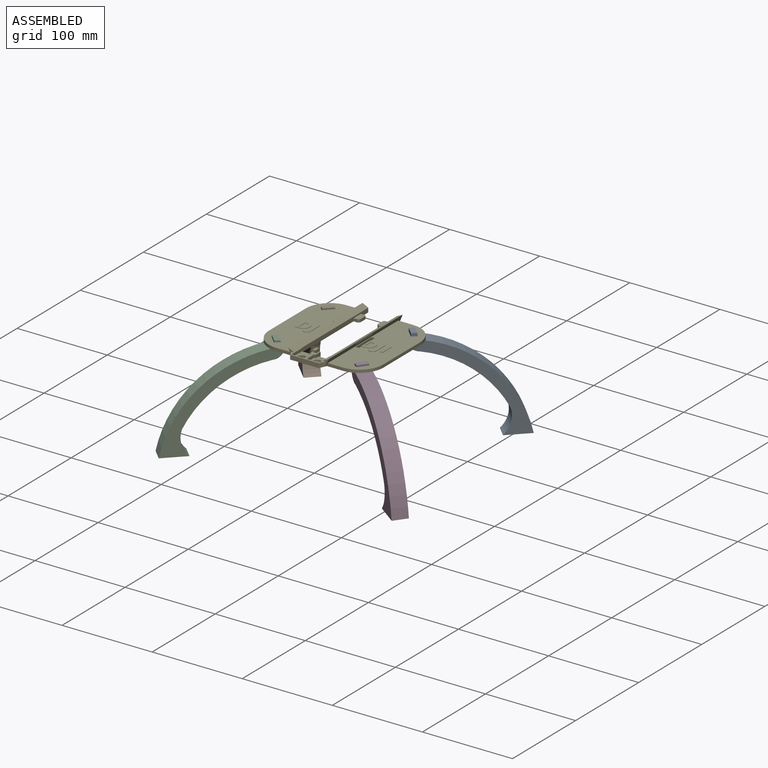
[diagram: assembled view]
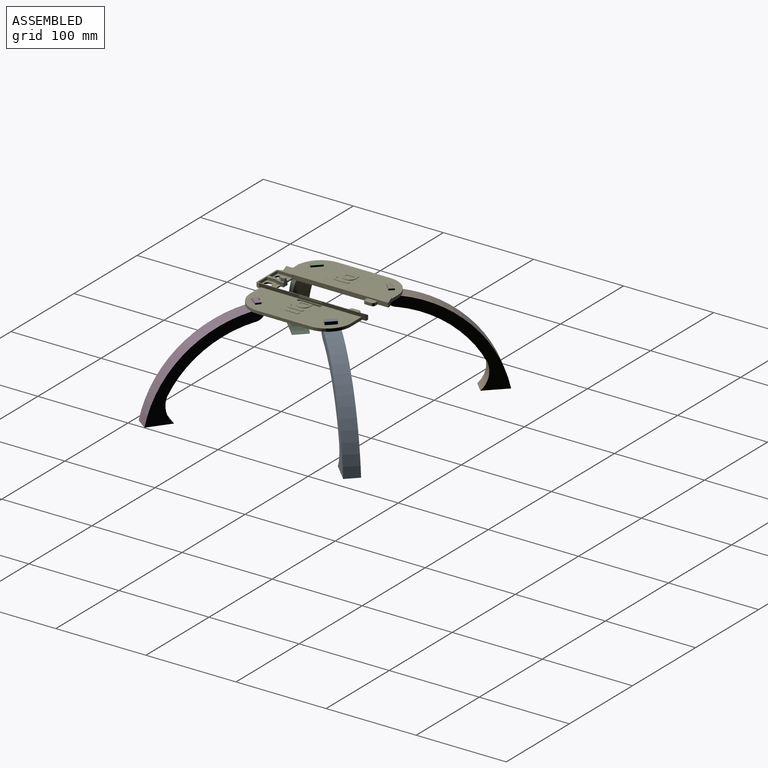
[diagram: assembled view, second angle]
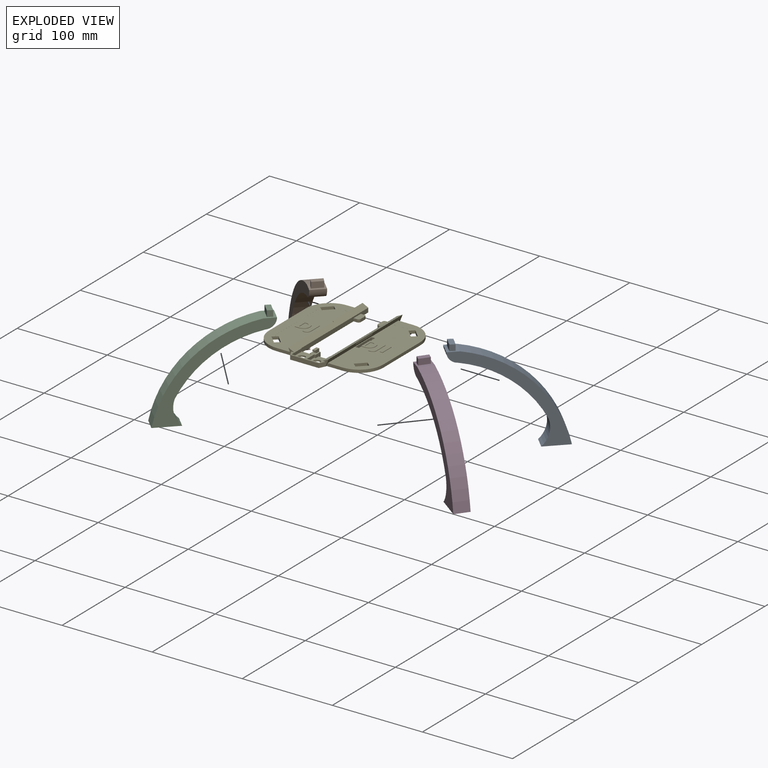
[diagram: exploded view]
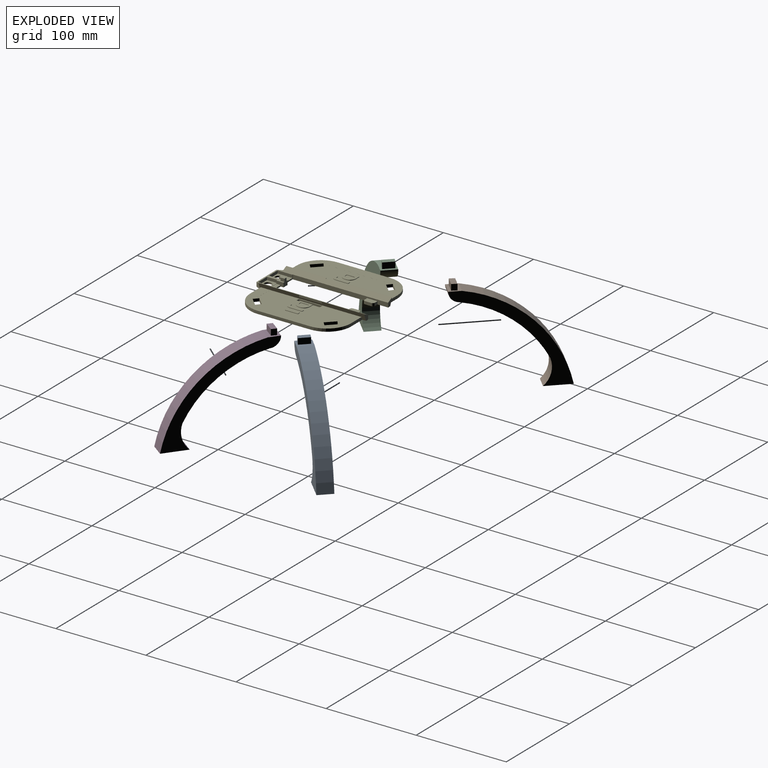
[diagram: exploded view, second angle]
ASSEMBLY  parts=5 mates=3
PART A: 13 faces, bbox 93.8x93.8x108.2 mm
  f0: plane 101.6x82.05mm, normal (0.71,-0.71,0), area 1936.1mm2, adj f1,f8,f9,f10,f11,f12
  f1: plane 31.82x31.82mm, normal (0,0,-1), area 471mm2, adj f0,f7,f9,f12
  f2: plane 6.61x4.43mm, normal (-0.65,0.76,0), area 38.7mm2, adj f3,f5,f6,f8
  f3: plane 8.64x8.64mm, normal (0.71,0.71,0), area 80.8mm2, adj f2,f4,f6,f8
  f4: plane 6.61x4.43mm, normal (0.65,-0.76,0), area 38.7mm2, adj f3,f5,f6,f8
  f5: plane 8.64x8.64mm, normal (-0.71,-0.71,0), area 80.8mm2, adj f2,f4,f6,f8
  f6: plane 13.08x12.47mm, normal (0,0,1), area 71.4mm2, adj f2,f3,f4,f5
  f7: plane 101.6x82.05mm, normal (-0.71,0.71,0), area 1936.1mm2, adj f1,f8,f9,f10,f11,f12
  f8: plane 20.72x20.72mm, normal (0,0,1), area 139.5mm2, adj f0,f2,f3,f4,f5,f7,f9,f10
  f9: cylinder r=129.8mm len=101.6mm, axis (-0.71,0.71,0), area 2545.9mm2, adj f0,f1,f7,f8
  f10: cylinder r=11.25mm len=19.23mm, axis (-0.71,0.71,0), area 282.5mm2, adj f0,f7,f8,f11
  f11: cylinder r=118.37mm len=70.95mm, axis (-0.71,0.71,0), area 1795.7mm2, adj f0,f7,f10,f12
  f12: cylinder r=25.54mm len=27.61mm, axis (-0.71,0.71,0), area 499.5mm2, adj f0,f1,f7,f11
PART B: same geometry as A
PART C: same geometry as A
PART D: same geometry as A
PART E: 171 faces, bbox 127x123.8x8.1 mm
  f0: plane 91.57x33.03mm, normal (0,0,1), area 2477.7mm2, adj f2,f3,f5,f6,f11,f53,f54,f55
  f1: plane 127.02x123.83mm, normal (0,0,-1), area 10209.1mm2, adj f10,f11,f13,f16,f17,f18,f26,f30
  f2: plane 3.78x0.51mm, normal (0,1,0), area 1.9mm2, adj f0,f4,f54,f161
  f3: plane 3.34x0.51mm, normal (0,-1,0), area 1.7mm2, adj f0,f4,f55,f161
  f4: plane 14.26x11.14mm, normal (0,0,1), area 93.6mm2, adj f2,f3,f53,f54,f55,f56,f57,f58
  f5: cylinder r=16.56mm len=7.1mm, axis (0,0,-1), area 0.2mm2, adj f0,f7,f120,f150
  f6: cylinder r=16.56mm len=5.42mm, axis (0,0,-1), area 0.1mm2, adj f0,f7,f122,f156
  f7: plane 111.89x43.18mm, normal (0,0,1), area 1548.3mm2, adj f5,f6,f11,f120,f121,f122,f123,f124
  f8: cylinder r=16.56mm len=7.1mm, axis (0,0,-1), area 0.2mm2, adj f14,f130,f133,f148
  f9: cylinder r=16.56mm len=5.42mm, axis (0,0,-1), area 0.1mm2, adj f14,f132,f133,f144
  f10: plane 117.48x7.93mm, normal (-0.93,0,-0.37), area 545.1mm2, adj f1,f14,f27,f29,f33,f131,f132,f133
  f11: plane 117.48x7.93mm, normal (0.93,0,-0.37), area 545.1mm2, adj f0,f1,f7,f25,f28,f32,f121,f122
  f12: plane 16.32x3.3mm, normal (1,0,0), area 52.4mm2, adj f16,f23,f39,f41,f45,f47
  f13: plane 12.7x4.76mm, normal (0,1,0), area 20.2mm2, adj f1,f18,f23,f36,f43,f44
  f14: plane 91.57x33.03mm, normal (0,0,1), area 2472.9mm2, adj f8,f9,f10,f79,f80,f81,f82,f83
  f15: plane 11.56x6.35mm, normal (0,0,1), area 70.6mm2, adj f18,f108,f110,f112,f115,f117
  f16: plane 12.7x4.76mm, normal (0,1,0), area 20.1mm2, adj f1,f12,f17,f23,f46,f47,f119
  f17: plane 105.93x4.77mm, normal (1,0,0), area 427.4mm2, adj f1,f16,f29,f33,f52,f109,f113,f119
  f18: plane 105.92x4.76mm, normal (-1,0,0), area 467.7mm2, adj f1,f13,f15,f25,f32,f108,f112
  f19: plane 6.23x3.18mm, normal (0,0,1), area 19.8mm2, adj f20,f21,f49,f118
  f20: plane 6.23x3.3mm, normal (-1,0,0), area 17.3mm2, adj f19,f22,f23,f48,f49,f118
  f21: plane 6.23x3.3mm, normal (1,0,0), area 17.3mm2, adj f19,f22,f23,f48,f49,f118
  f22: plane 3.18x1.72mm, normal (0,0,-1), area 5.5mm2, adj f20,f21,f48,f49
  f23: plane 38.1x21.08mm, normal (0,0,1), area 159.2mm2, adj f12,f13,f16,f20,f21,f24,f25,f26
  f24: plane 3.18x1.59mm, normal (0,-1,0), area 5mm2, adj f23,f34,f37,f43
  f25: plane 117.48x6.35mm, normal (-0.45,0,0.9), area 802.4mm2, adj f11,f18,f23,f28,f32,f168,f169,f170
  f26: plane 31.75x4.76mm, normal (0,-1,0), area 151.2mm2, adj f1,f23,f30,f31
  f27: plane 7.93x6.35mm, normal (0,-1,0), area 12.6mm2, adj f10,f23,f29,f31
  f28: plane 7.93x6.35mm, normal (0,-1,0), area 12.6mm2, adj f11,f23,f25,f30
  f29: plane 117.48x6.35mm, normal (0.45,0,0.9), area 802.4mm2, adj f10,f17,f23,f27,f33,f165,f166,f167
  f30: plane 6.35x4.76mm, normal (0.89,-0.45,0), area 33.8mm2, adj f1,f23,f26,f28
  f31: plane 6.35x4.76mm, normal (-0.89,-0.45,0), area 33.8mm2, adj f1,f23,f26,f27
  f32: plane 7.93x6.35mm, normal (0,1,0), area 27.7mm2, adj f1,f11,f18,f25
  f33: plane 7.93x6.35mm, normal (0,1,0), area 27.7mm2, adj f1,f10,f17,f29
  f34: plane 11.56x3.18mm, normal (1,0,0), area 36.7mm2, adj f23,f24,f35,f37
  f35: plane 13.8x3.18mm, normal (0,1,0), area 43.8mm2, adj f23,f34,f36,f37
  f36: plane 16.32x3.3mm, normal (-1,0,0), area 52.4mm2, adj f13,f23,f35,f37,f42,f44
  f37: plane 13.8x11.56mm, normal (0,0,1), area 103.8mm2, adj f24,f34,f35,f36,f42,f51
  f38: plane 3.18x1.59mm, normal (0,-1,0), area 5mm2, adj f23,f40,f41,f46
  f39: plane 13.8x3.18mm, normal (0,1,0), area 43.8mm2, adj f12,f23,f40,f41
  f40: plane 11.56x3.18mm, normal (-1,0,0), area 36.7mm2, adj f23,f38,f39,f41
  f41: plane 13.8x11.56mm, normal (0,0,1), area 103.9mm2, adj f12,f38,f39,f40,f45,f50
  f42: plane 12.21x0.13mm, normal (0,1,0), area 1.6mm2, adj f36,f37,f43,f44
  f43: plane 7.94x4.76mm, normal (1,0,0), area 30.8mm2, adj f1,f13,f23,f24,f42,f44,f118
  f44: plane 12.21x4.76mm, normal (0,0,1), area 58.2mm2, adj f13,f36,f42,f43
  f45: plane 12.21x0.13mm, normal (0,1,0), area 1.6mm2, adj f12,f41,f46,f47
  f46: plane 7.94x4.76mm, normal (-1,0,0), area 30.8mm2, adj f1,f16,f23,f38,f45,f47,f118
  f47: plane 12.21x4.76mm, normal (0,0,1), area 58.2mm2, adj f12,f16,f45,f46
  f48: plane 3.18x1.9mm, normal (0,-1,0), area 6mm2, adj f20,f21,f22,f23
  f49: plane 3.18x1.4mm, normal (0,-1,0), area 4.4mm2, adj f19,f20,f21,f22
  f50: cylinder r=4.21mm len=8.42mm, axis (0,0,1), area 42mm2, adj f1,f41
  f51: cylinder r=4.21mm len=8.42mm, axis (0,0,1), area 42mm2, adj f1,f37
  f52: plane 11.56x6.35mm, normal (0,0,1), area 70.6mm2, adj f17,f109,f111,f113,f114,f116
  f53: extruded ~5.15x1.93mm, area 2.9mm2, adj f0,f4,f54,f61
  f54: extruded ~5.42x1.84mm, area 3mm2, adj f0,f2,f4,f53
  f55: extruded ~5.79x1.87mm, area 3.2mm2, adj f0,f3,f4,f61
  f56: extruded ~4.69x4.37mm, area 3.7mm2, adj f4,f57,f60,f62
  f57: plane 1.3x0.51mm, normal (0,1,0), area 0.7mm2, adj f4,f56,f58,f62
  f58: plane 9.29x0.51mm, normal (1,0,0), area 4.7mm2, adj f4,f57,f59,f62
  f59: plane 1.61x0.51mm, normal (0,-1,0), area 0.8mm2, adj f4,f58,f60,f62
  f60: extruded ~4.59x4.06mm, area 3.6mm2, adj f4,f56,f59,f62
  f61: extruded ~5.39x2.01mm, area 3mm2, adj f0,f4,f53,f55
  f62: plane 9.29x5.67mm, normal (0,0,1), area 46.1mm2, adj f56,f57,f58,f59,f60
  f63: extruded ~3.38x1.31mm, area 1.9mm2, adj f0,f64,f72,f73
  f64: extruded ~3.8x1.14mm, area 2.1mm2, adj f0,f63,f65,f73
  f65: plane 13.34x0.51mm, normal (1,0,0), area 6.8mm2, adj f0,f64,f66,f73
  f66: plane 3.02x0.51mm, normal (0,1,0), area 1.5mm2, adj f0,f65,f67,f73
  f67: plane 13.36x0.51mm, normal (-1,0,0), area 6.8mm2, adj f0,f66,f68,f73
  f68: extruded ~1.94x0.51mm, area 1mm2, adj f0,f67,f69,f73
  f69: extruded ~1.43x0.62mm, area 0.8mm2, adj f0,f68,f70,f73
  f70: extruded ~1.42x0.51mm, area 0.7mm2, adj f0,f69,f71,f73
  f71: plane 2.52x0.51mm, normal (-1,0,0), area 1.3mm2, adj f0,f70,f72,f73
  f72: extruded ~1.79x0.51mm, area 0.9mm2, adj f0,f63,f71,f73
  f73: plane 18.46x6.3mm, normal (0,0,1), area 60.9mm2, adj f63,f64,f65,f66,f67,f68,f69,f70
  f74: plane 3.02x0.51mm, normal (0,-1,0), area 1.5mm2, adj f0,f75,f77,f78
  f75: plane 14.26x0.51mm, normal (1,0,0), area 7.2mm2, adj f0,f74,f76,f78
  f76: plane 3.02x0.51mm, normal (0,1,0), area 1.5mm2, adj f0,f75,f77,f78
  f77: plane 14.26x0.51mm, normal (-1,0,0), area 7.2mm2, adj f0,f74,f76,f78
  f78: plane 14.26x3.02mm, normal (0,0,1), area 43.1mm2, adj f74,f75,f76,f77
  f79: extruded ~5.15x1.93mm, area 2.9mm2, adj f14,f80,f90,f91
  f80: extruded ~5.42x1.84mm, area 3mm2, adj f14,f79,f81,f91
  f81: plane 4.48x0.51mm, normal (0,1,0), area 2.3mm2, adj f14,f80,f82,f91
  f82: plane 14.26x0.51mm, normal (-1,0,0), area 7.2mm2, adj f14,f81,f83,f91
  f83: plane 4.04x0.51mm, normal (0,-1,0), area 2.1mm2, adj f14,f82,f84,f91
  f84: extruded ~5.79x1.87mm, area 3.2mm2, adj f14,f83,f90,f91
  f85: extruded ~4.69x4.37mm, area 3.7mm2, adj f86,f89,f91,f92
  f86: plane 1.3x0.51mm, normal (0,1,0), area 0.7mm2, adj f85,f87,f91,f92
  f87: plane 9.29x0.51mm, normal (1,0,0), area 4.7mm2, adj f86,f88,f91,f92
  f88: plane 1.61x0.51mm, normal (0,-1,0), area 0.8mm2, adj f87,f89,f91,f92
  f89: extruded ~4.59x4.06mm, area 3.6mm2, adj f85,f88,f91,f92
  f90: extruded ~5.39x2.01mm, area 3mm2, adj f14,f79,f84,f91
  f91: plane 14.26x11.83mm, normal (0,0,1), area 103.5mm2, adj f79,f80,f81,f82,f83,f84,f85,f86
  f92: plane 9.29x5.67mm, normal (0,0,1), area 46.1mm2, adj f85,f86,f87,f88,f89
  f93: extruded ~3.38x1.31mm, area 1.9mm2, adj f14,f94,f102,f103
  f94: extruded ~3.8x1.14mm, area 2.1mm2, adj f14,f93,f95,f103
  f95: plane 13.34x0.51mm, normal (1,0,0), area 6.8mm2, adj f14,f94,f96,f103
  f96: plane 3.02x0.51mm, normal (0,1,0), area 1.5mm2, adj f14,f95,f97,f103
  f97: plane 13.36x0.51mm, normal (-1,0,0), area 6.8mm2, adj f14,f96,f98,f103
  f98: extruded ~1.94x0.51mm, area 1mm2, adj f14,f97,f99,f103
  f99: extruded ~1.43x0.62mm, area 0.8mm2, adj f14,f98,f100,f103
  f100: extruded ~1.42x0.51mm, area 0.7mm2, adj f14,f99,f101,f103
  f101: plane 2.52x0.51mm, normal (-1,0,0), area 1.3mm2, adj f14,f100,f102,f103
  f102: extruded ~1.79x0.51mm, area 0.9mm2, adj f14,f93,f101,f103
  f103: plane 18.46x6.3mm, normal (0,0,1), area 60.9mm2, adj f93,f94,f95,f96,f97,f98,f99,f100
  f104: plane 2.66x0.51mm, normal (0,-1,0), area 1.4mm2, adj f14,f106,f107,f157
  f105: plane 2.66x0.51mm, normal (0,1,0), area 1.4mm2, adj f14,f106,f107,f157
  f106: plane 14.26x0.51mm, normal (-1,0,0), area 7.2mm2, adj f14,f104,f105,f107
  f107: plane 14.26x2.66mm, normal (0,0,1), area 38mm2, adj f104,f105,f106,f157
  f108: plane 3.81x3.18mm, normal (0,-1,0), area 12.1mm2, adj f1,f15,f18,f117
  f109: plane 3.81x3.18mm, normal (0,-1,0), area 12.1mm2, adj f1,f17,f52,f116
  f110: plane 6.48x3.18mm, normal (-1,0,0), area 20.6mm2, adj f1,f15,f115,f117
  f111: plane 6.48x3.18mm, normal (1,0,0), area 20.6mm2, adj f1,f52,f114,f116
  f112: plane 3.81x3.18mm, normal (0,1,0), area 12.1mm2, adj f1,f15,f18,f115
  f113: plane 3.81x3.18mm, normal (0,1,0), area 12.1mm2, adj f1,f17,f52,f114
  f114: cylinder r=2.54mm len=3.18mm, axis (0,0,-1), area 12.7mm2, adj f1,f52,f111,f113
  f115: cylinder r=2.54mm len=3.18mm, axis (0,0,-1), area 12.7mm2, adj f1,f15,f110,f112
  f116: cylinder r=2.54mm len=3.18mm, axis (0,0,1), area 12.7mm2, adj f1,f52,f109,f111
  f117: cylinder r=2.54mm len=3.18mm, axis (0,0,1), area 12.7mm2, adj f1,f15,f108,f110
  f118: plane 8.06x6.35mm, normal (0,1,0), area 40.7mm2, adj f1,f19,f20,f21,f23,f43,f46
  f119: plane 12.71x3.18mm, normal (1,0,0), area 40.3mm2, adj f1,f16,f17
  f120: plane 58.45x0.03mm, normal (-1,0,0), area 1.5mm2, adj f0,f5,f7,f125
  f121: plane 16.47x0.03mm, normal (0,1,0), area 0.4mm2, adj f0,f7,f11,f124
  f122: plane 16.47x0.03mm, normal (0,-1,0), area 0.4mm2, adj f0,f6,f7,f11
  f123: plane 17.74x3.2mm, normal (0,-1,0), area 54.7mm2, adj f1,f7,f11,f129
  f124: cylinder r=16.56mm len=5.42mm, axis (0,0,-1), area 0.1mm2, adj f0,f7,f121,f152
  f125: cylinder r=16.56mm len=7.1mm, axis (0,0,-1), area 0.2mm2, adj f0,f7,f120,f155
  f126: plane 17.74x3.2mm, normal (0,1,0), area 54.7mm2, adj f1,f7,f11,f127
  f127: cylinder r=26.72mm len=26.72mm, axis (0,0,-1), area 134.3mm2, adj f1,f7,f126,f128
  f128: plane 58.45x3.2mm, normal (1,0,0), area 187.1mm2, adj f1,f7,f127,f129
  f129: cylinder r=26.72mm len=26.72mm, axis (0,0,-1), area 134.3mm2, adj f1,f7,f123,f128
  f130: plane 58.45x0.03mm, normal (1,0,0), area 1.5mm2, adj f8,f14,f133,f137
  f131: plane 16.47x0.03mm, normal (0,-1,0), area 0.4mm2, adj f10,f14,f133,f136
  f132: plane 16.47x0.03mm, normal (0,1,0), area 0.4mm2, adj f9,f10,f14,f133
  f133: plane 111.89x43.18mm, normal (0,0,1), area 1548.3mm2, adj f8,f9,f10,f130,f131,f132,f134,f135
  f134: plane 17.74x3.2mm, normal (0,1,0), area 54.7mm2, adj f1,f10,f133,f140
  f135: plane 17.74x3.2mm, normal (0,-1,0), area 54.7mm2, adj f1,f10,f133,f138
  f136: cylinder r=16.56mm len=5.42mm, axis (0,0,-1), area 0.1mm2, adj f14,f131,f133,f147
  f137: cylinder r=16.56mm len=7.1mm, axis (0,0,-1), area 0.2mm2, adj f14,f130,f133,f143
  f138: cylinder r=26.72mm len=26.72mm, axis (0,0,-1), area 134.3mm2, adj f1,f133,f135,f139
  f139: plane 58.45x3.2mm, normal (-1,0,0), area 187.1mm2, adj f1,f133,f138,f140
  f140: cylinder r=26.72mm len=26.72mm, axis (0,0,-1), area 134.3mm2, adj f1,f133,f134,f139
  f141: plane 9x9mm, normal (-0.71,-0.71,0), area 40.4mm2, adj f1,f14,f143,f144
  f142: plane 9x9mm, normal (0.71,0.71,0), area 40.7mm2, adj f1,f133,f143,f144
  f143: plane 4.82x4.16mm, normal (0.65,-0.76,0), area 20.3mm2, adj f1,f14,f133,f137,f141,f142
  f144: plane 4.82x4.16mm, normal (-0.65,0.76,0), area 20.3mm2, adj f1,f9,f14,f133,f141,f142
  f145: plane 9x9mm, normal (-0.71,0.71,0), area 40.4mm2, adj f1,f14,f147,f148
  f146: plane 9x9mm, normal (0.71,-0.71,0), area 40.7mm2, adj f1,f133,f147,f148
  f147: plane 4.82x4.16mm, normal (-0.65,-0.76,0), area 20.3mm2, adj f1,f14,f133,f136,f145,f146
  f148: plane 4.82x4.16mm, normal (0.65,0.76,0), area 20.3mm2, adj f1,f8,f14,f133,f145,f146
  f149: plane 9x9mm, normal (0.71,-0.71,0), area 40.4mm2, adj f0,f1,f150,f152
  f150: plane 4.82x4.16mm, normal (-0.65,-0.76,0), area 20.3mm2, adj f0,f1,f5,f7,f149,f151
  f151: plane 9x9mm, normal (-0.71,0.71,0), area 40.7mm2, adj f1,f7,f150,f152
  f152: plane 4.82x4.16mm, normal (0.65,0.76,0), area 20.3mm2, adj f0,f1,f7,f124,f149,f151
  f153: plane 9x9mm, normal (0.71,0.71,0), area 40.4mm2, adj f0,f1,f155,f156
  f154: plane 9x9mm, normal (-0.71,-0.71,0), area 40.7mm2, adj f1,f7,f155,f156
  f155: plane 4.82x4.16mm, normal (-0.65,0.76,0), area 20.3mm2, adj f0,f1,f7,f125,f153,f154
  f156: plane 4.82x4.16mm, normal (0.65,-0.76,0), area 20.3mm2, adj f0,f1,f6,f7,f153,f154
  f157: plane 25.73x3.68mm, normal (1,0,0), area 88.9mm2, adj f1,f14,f104,f105,f107,f158,f160
  f158: plane 3.66x3.18mm, normal (0,1,0), area 11.6mm2, adj f1,f14,f157,f159
  f159: plane 25.73x3.18mm, normal (-1,0,0), area 81.7mm2, adj f1,f14,f158,f160
  f160: plane 3.66x3.18mm, normal (0,-1,0), area 11.6mm2, adj f1,f14,f157,f159
  f161: plane 25.73x3.68mm, normal (-1,0,0), area 88.9mm2, adj f0,f1,f2,f3,f4,f162,f164
  f162: plane 3.66x3.18mm, normal (0,-1,0), area 11.6mm2, adj f0,f1,f161,f163
  f163: plane 25.73x3.18mm, normal (1,0,0), area 81.7mm2, adj f0,f1,f162,f164
  f164: plane 3.66x3.18mm, normal (0,1,0), area 11.6mm2, adj f0,f1,f161,f163
  f165: plane 2.69x1.08mm, normal (0,-1,0), area 1.2mm2, adj f10,f29,f166
  f166: plane 25.73x2.15mm, normal (-1,0,0), area 55.4mm2, adj f10,f29,f165,f167
  f167: plane 2.69x1.08mm, normal (0,1,0), area 1.2mm2, adj f10,f29,f166
  f168: plane 2.69x1.08mm, normal (0,1,0), area 1.2mm2, adj f11,f25,f169
  f169: plane 25.73x2.15mm, normal (1,0,0), area 55.4mm2, adj f11,f25,f168,f170
  f170: plane 2.69x1.08mm, normal (0,-1,0), area 1.2mm2, adj f11,f25,f169
PLACE A at identity
PLACE B rot(axis=(0,0,1),90deg) t=(421.86,-272.93,-1.46)mm
PLACE C rot(axis=(0,0,1),180deg) t=(694.61,160.98,-1.45)mm
PLACE D rot(axis=(0,0,-1),81.7deg) t=(218,412.04,-1.45)mm
PLACE E at identity
MATE slider C.f2 <-> E.f144  axis (0.65,-0.76,0) through (304.38,35.17,-163.66)mm
MATE slider B.f5 <-> E.f145  axis (0.71,-0.71,0) through (302.29,119.41,-163.66)mm
MATE slider D.f2 <-> E.f150  axis (0.65,0.76,0) through (399.06,44.17,-163.66)mm
